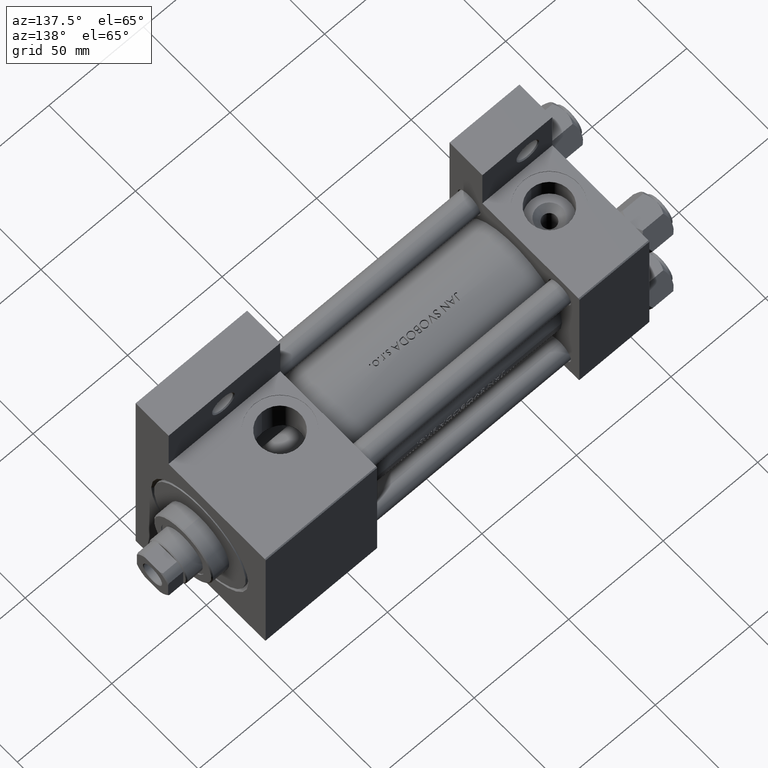
[diagram: clean part render]
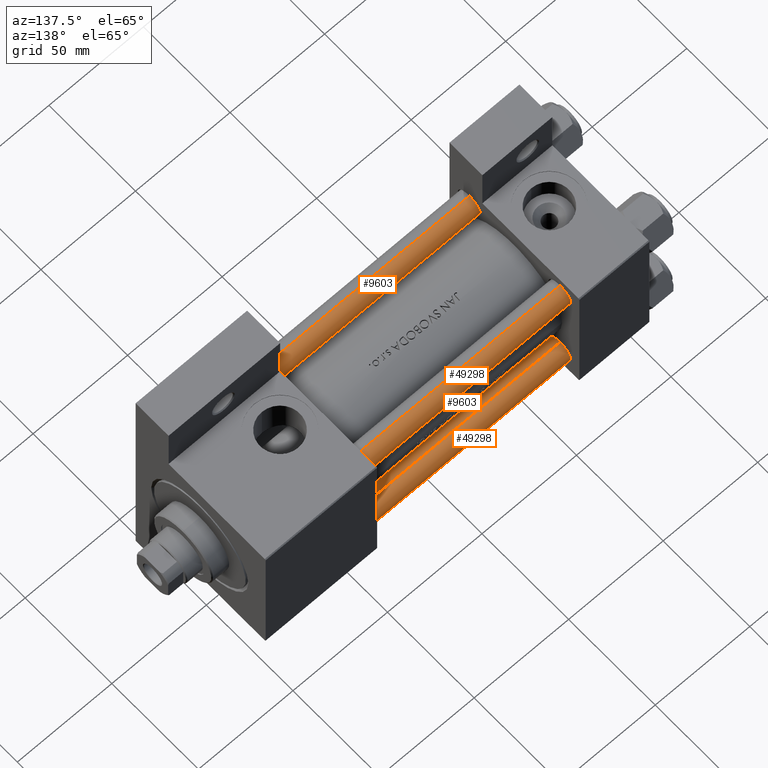
[diagram: same view with one multi-face feature highlighted, each face labeled with its STEP entity id]
A machine part, auxiliary view. The highlighted faces form ONE feature: a constant-radius fillet chain: 4 tangent blend faces with common blend radius 6 mm. The faces share edges in the B-rep.
Their STEP definitions:
[1] entity #49298 (Cylinder):
#94 = FACE_OUTER_BOUND ( 'NONE', #5029, .T. ) ;
#668 = LINE ( 'NONE', #11143, #45308 ) ;
#1693 = VERTEX_POINT ( 'NONE', #35043 ) ;
#2863 = CARTESIAN_POINT ( 'NONE',  ( 0.000000000000000000, 0.000000000000000000, 172.5000000000000000 ) ) ;
#3900 = CIRCLE ( 'NONE', #34106, 6.000000000000000888 ) ;
#5029 = EDGE_LOOP ( 'NONE', ( #9648, #10203, #13690, #46423 ) ) ;
#5472 = DIRECTION ( 'NONE',  ( 1.000000000000000000, 0.000000000000000000, 0.000000000000000000 ) ) ;
#7331 = DIRECTION ( 'NONE',  ( 0.000000000000000000, 0.000000000000000000, -1.000000000000000000 ) ) ;
#7340 = AXIS2_PLACEMENT_3D ( 'NONE', #26721, #41941, #15534 ) ;
#9627 = CIRCLE ( 'NONE', #37459, 6.000000000000000888 ) ;
#9648 = ORIENTED_EDGE ( 'NONE', *, *, #41752, .T. ) ;
#10203 = ORIENTED_EDGE ( 'NONE', *, *, #38712, .T. ) ;
#10233 = CARTESIAN_POINT ( 'NONE',  ( -6.000000000000000888, 0.000000000000000000, 172.5000000000000000 ) ) ;
#11143 = CARTESIAN_POINT ( 'NONE',  ( 6.000000000000000888, 7.347880794884120722E-16, 173.0000000000000000 ) ) ;
#12460 = EDGE_CURVE ( 'NONE', #14379, #37946, #44886, .T. ) ;
#13211 = DIRECTION ( 'NONE',  ( -0.000000000000000000, -0.000000000000000000, 1.000000000000000000 ) ) ;
#13690 = ORIENTED_EDGE ( 'NONE', *, *, #23918, .T. ) ;
#14379 = VERTEX_POINT ( 'NONE', #10233 ) ;
#14986 = CARTESIAN_POINT ( 'NONE',  ( -6.000000000000000888, 0.000000000000000000, 173.0000000000000000 ) ) ;
#15534 = DIRECTION ( 'NONE',  ( -1.000000000000000000, 0.000000000000000000, 0.000000000000000000 ) ) ;
#18613 = DIRECTION ( 'NONE',  ( -0.000000000000000000, -0.000000000000000000, -1.000000000000000000 ) ) ;
#21964 = DIRECTION ( 'NONE',  ( -0.000000000000000000, -0.000000000000000000, -1.000000000000000000 ) ) ;
#23918 = EDGE_CURVE ( 'NONE', #1693, #37946, #9627, .T. ) ;
#26721 = CARTESIAN_POINT ( 'NONE',  ( 0.000000000000000000, 0.000000000000000000, 173.0000000000000000 ) ) ;
#29269 = VECTOR ( 'NONE', #21964, 1000.000000000000000 ) ;
#29497 = DIRECTION ( 'NONE',  ( 1.000000000000000000, 0.000000000000000000, 0.000000000000000000 ) ) ;
#30461 = CYLINDRICAL_SURFACE ( 'NONE', #7340, 6.000000000000000888 ) ;
#31619 = CARTESIAN_POINT ( 'NONE',  ( 0.000000000000000000, 0.000000000000000000, 0.5000000000000281997 ) ) ;
#34106 = AXIS2_PLACEMENT_3D ( 'NONE', #2863, #7331, #29497 ) ;
#35043 = CARTESIAN_POINT ( 'NONE',  ( 6.000000000000000888, 7.347880794884120722E-16, 0.5000000000000281997 ) ) ;
#35174 = VERTEX_POINT ( 'NONE', #45690 ) ;
#37459 = AXIS2_PLACEMENT_3D ( 'NONE', #31619, #13211, #5472 ) ;
#37946 = VERTEX_POINT ( 'NONE', #43670 ) ;
#38712 = EDGE_CURVE ( 'NONE', #35174, #1693, #668, .T. ) ;
#41752 = EDGE_CURVE ( 'NONE', #14379, #35174, #3900, .T. ) ;
#41941 = DIRECTION ( 'NONE',  ( -0.000000000000000000, -0.000000000000000000, -1.000000000000000000 ) ) ;
#43670 = CARTESIAN_POINT ( 'NONE',  ( -6.000000000000000888, 0.000000000000000000, 0.5000000000000281997 ) ) ;
#44886 = LINE ( 'NONE', #14986, #29269 ) ;
#45308 = VECTOR ( 'NONE', #18613, 1000.000000000000000 ) ;
#45690 = CARTESIAN_POINT ( 'NONE',  ( 6.000000000000000888, 7.347880794884120722E-16, 172.5000000000000000 ) ) ;
#46423 = ORIENTED_EDGE ( 'NONE', *, *, #12460, .F. ) ;
#49298 = ADVANCED_FACE ( 'NONE', ( #94 ), #30461, .T. ) ;
[2] entity #9603 (Cylinder):
#668 = LINE ( 'NONE', #11143, #45308 ) ;
#1693 = VERTEX_POINT ( 'NONE', #35043 ) ;
#1847 = DIRECTION ( 'NONE',  ( -0.000000000000000000, -0.000000000000000000, -1.000000000000000000 ) ) ;
#5567 = CARTESIAN_POINT ( 'NONE',  ( 0.000000000000000000, 0.000000000000000000, 173.0000000000000000 ) ) ;
#8517 = CIRCLE ( 'NONE', #37966, 6.000000000000000888 ) ;
#9603 = ADVANCED_FACE ( 'NONE', ( #20772 ), #43186, .T. ) ;
#10233 = CARTESIAN_POINT ( 'NONE',  ( -6.000000000000000888, 0.000000000000000000, 172.5000000000000000 ) ) ;
#11143 = CARTESIAN_POINT ( 'NONE',  ( 6.000000000000000888, 7.347880794884120722E-16, 173.0000000000000000 ) ) ;
#12460 = EDGE_CURVE ( 'NONE', #14379, #37946, #44886, .T. ) ;
#14379 = VERTEX_POINT ( 'NONE', #10233 ) ;
#14986 = CARTESIAN_POINT ( 'NONE',  ( -6.000000000000000888, 0.000000000000000000, 173.0000000000000000 ) ) ;
#17321 = DIRECTION ( 'NONE',  ( 0.000000000000000000, 0.000000000000000000, -1.000000000000000000 ) ) ;
#17462 = CARTESIAN_POINT ( 'NONE',  ( 0.000000000000000000, 0.000000000000000000, 0.5000000000000281997 ) ) ;
#18380 = EDGE_CURVE ( 'NONE', #37946, #1693, #42062, .T. ) ;
#18613 = DIRECTION ( 'NONE',  ( -0.000000000000000000, -0.000000000000000000, -1.000000000000000000 ) ) ;
#20772 = FACE_OUTER_BOUND ( 'NONE', #33292, .T. ) ;
#20818 = CARTESIAN_POINT ( 'NONE',  ( 0.000000000000000000, 0.000000000000000000, 172.5000000000000000 ) ) ;
#21964 = DIRECTION ( 'NONE',  ( -0.000000000000000000, -0.000000000000000000, -1.000000000000000000 ) ) ;
#23514 = DIRECTION ( 'NONE',  ( -1.000000000000000000, 0.000000000000000000, 0.000000000000000000 ) ) ;
#24478 = ORIENTED_EDGE ( 'NONE', *, *, #38712, .F. ) ;
#28252 = DIRECTION ( 'NONE',  ( 1.000000000000000000, 0.000000000000000000, 0.000000000000000000 ) ) ;
#29269 = VECTOR ( 'NONE', #21964, 1000.000000000000000 ) ;
#31922 = ORIENTED_EDGE ( 'NONE', *, *, #18380, .T. ) ;
#33292 = EDGE_LOOP ( 'NONE', ( #24478, #35480, #46690, #31922 ) ) ;
#34926 = EDGE_CURVE ( 'NONE', #35174, #14379, #8517, .T. ) ;
#35043 = CARTESIAN_POINT ( 'NONE',  ( 6.000000000000000888, 7.347880794884120722E-16, 0.5000000000000281997 ) ) ;
#35174 = VERTEX_POINT ( 'NONE', #45690 ) ;
#35480 = ORIENTED_EDGE ( 'NONE', *, *, #34926, .T. ) ;
#35699 = AXIS2_PLACEMENT_3D ( 'NONE', #17462, #39390, #36380 ) ;
#36322 = AXIS2_PLACEMENT_3D ( 'NONE', #5567, #1847, #23514 ) ;
#36380 = DIRECTION ( 'NONE',  ( 1.000000000000000000, 0.000000000000000000, 0.000000000000000000 ) ) ;
#37946 = VERTEX_POINT ( 'NONE', #43670 ) ;
#37966 = AXIS2_PLACEMENT_3D ( 'NONE', #20818, #17321, #28252 ) ;
#38712 = EDGE_CURVE ( 'NONE', #35174, #1693, #668, .T. ) ;
#39390 = DIRECTION ( 'NONE',  ( -0.000000000000000000, -0.000000000000000000, 1.000000000000000000 ) ) ;
#42062 = CIRCLE ( 'NONE', #35699, 6.000000000000000888 ) ;
#43186 = CYLINDRICAL_SURFACE ( 'NONE', #36322, 6.000000000000000888 ) ;
#43670 = CARTESIAN_POINT ( 'NONE',  ( -6.000000000000000888, 0.000000000000000000, 0.5000000000000281997 ) ) ;
#44886 = LINE ( 'NONE', #14986, #29269 ) ;
#45308 = VECTOR ( 'NONE', #18613, 1000.000000000000000 ) ;
#45690 = CARTESIAN_POINT ( 'NONE',  ( 6.000000000000000888, 7.347880794884120722E-16, 172.5000000000000000 ) ) ;
#46690 = ORIENTED_EDGE ( 'NONE', *, *, #12460, .T. ) ;
[3] entity #49298 (Cylinder):
#94 = FACE_OUTER_BOUND ( 'NONE', #5029, .T. ) ;
#668 = LINE ( 'NONE', #11143, #45308 ) ;
#1693 = VERTEX_POINT ( 'NONE', #35043 ) ;
#2863 = CARTESIAN_POINT ( 'NONE',  ( 0.000000000000000000, 0.000000000000000000, 172.5000000000000000 ) ) ;
#3900 = CIRCLE ( 'NONE', #34106, 6.000000000000000888 ) ;
#5029 = EDGE_LOOP ( 'NONE', ( #9648, #10203, #13690, #46423 ) ) ;
#5472 = DIRECTION ( 'NONE',  ( 1.000000000000000000, 0.000000000000000000, 0.000000000000000000 ) ) ;
#7331 = DIRECTION ( 'NONE',  ( 0.000000000000000000, 0.000000000000000000, -1.000000000000000000 ) ) ;
#7340 = AXIS2_PLACEMENT_3D ( 'NONE', #26721, #41941, #15534 ) ;
#9627 = CIRCLE ( 'NONE', #37459, 6.000000000000000888 ) ;
#9648 = ORIENTED_EDGE ( 'NONE', *, *, #41752, .T. ) ;
#10203 = ORIENTED_EDGE ( 'NONE', *, *, #38712, .T. ) ;
#10233 = CARTESIAN_POINT ( 'NONE',  ( -6.000000000000000888, 0.000000000000000000, 172.5000000000000000 ) ) ;
#11143 = CARTESIAN_POINT ( 'NONE',  ( 6.000000000000000888, 7.347880794884120722E-16, 173.0000000000000000 ) ) ;
#12460 = EDGE_CURVE ( 'NONE', #14379, #37946, #44886, .T. ) ;
#13211 = DIRECTION ( 'NONE',  ( -0.000000000000000000, -0.000000000000000000, 1.000000000000000000 ) ) ;
#13690 = ORIENTED_EDGE ( 'NONE', *, *, #23918, .T. ) ;
#14379 = VERTEX_POINT ( 'NONE', #10233 ) ;
#14986 = CARTESIAN_POINT ( 'NONE',  ( -6.000000000000000888, 0.000000000000000000, 173.0000000000000000 ) ) ;
#15534 = DIRECTION ( 'NONE',  ( -1.000000000000000000, 0.000000000000000000, 0.000000000000000000 ) ) ;
#18613 = DIRECTION ( 'NONE',  ( -0.000000000000000000, -0.000000000000000000, -1.000000000000000000 ) ) ;
#21964 = DIRECTION ( 'NONE',  ( -0.000000000000000000, -0.000000000000000000, -1.000000000000000000 ) ) ;
#23918 = EDGE_CURVE ( 'NONE', #1693, #37946, #9627, .T. ) ;
#26721 = CARTESIAN_POINT ( 'NONE',  ( 0.000000000000000000, 0.000000000000000000, 173.0000000000000000 ) ) ;
#29269 = VECTOR ( 'NONE', #21964, 1000.000000000000000 ) ;
#29497 = DIRECTION ( 'NONE',  ( 1.000000000000000000, 0.000000000000000000, 0.000000000000000000 ) ) ;
#30461 = CYLINDRICAL_SURFACE ( 'NONE', #7340, 6.000000000000000888 ) ;
#31619 = CARTESIAN_POINT ( 'NONE',  ( 0.000000000000000000, 0.000000000000000000, 0.5000000000000281997 ) ) ;
#34106 = AXIS2_PLACEMENT_3D ( 'NONE', #2863, #7331, #29497 ) ;
#35043 = CARTESIAN_POINT ( 'NONE',  ( 6.000000000000000888, 7.347880794884120722E-16, 0.5000000000000281997 ) ) ;
#35174 = VERTEX_POINT ( 'NONE', #45690 ) ;
#37459 = AXIS2_PLACEMENT_3D ( 'NONE', #31619, #13211, #5472 ) ;
#37946 = VERTEX_POINT ( 'NONE', #43670 ) ;
#38712 = EDGE_CURVE ( 'NONE', #35174, #1693, #668, .T. ) ;
#41752 = EDGE_CURVE ( 'NONE', #14379, #35174, #3900, .T. ) ;
#41941 = DIRECTION ( 'NONE',  ( -0.000000000000000000, -0.000000000000000000, -1.000000000000000000 ) ) ;
#43670 = CARTESIAN_POINT ( 'NONE',  ( -6.000000000000000888, 0.000000000000000000, 0.5000000000000281997 ) ) ;
#44886 = LINE ( 'NONE', #14986, #29269 ) ;
#45308 = VECTOR ( 'NONE', #18613, 1000.000000000000000 ) ;
#45690 = CARTESIAN_POINT ( 'NONE',  ( 6.000000000000000888, 7.347880794884120722E-16, 172.5000000000000000 ) ) ;
#46423 = ORIENTED_EDGE ( 'NONE', *, *, #12460, .F. ) ;
#49298 = ADVANCED_FACE ( 'NONE', ( #94 ), #30461, .T. ) ;
[4] entity #9603 (Cylinder):
#668 = LINE ( 'NONE', #11143, #45308 ) ;
#1693 = VERTEX_POINT ( 'NONE', #35043 ) ;
#1847 = DIRECTION ( 'NONE',  ( -0.000000000000000000, -0.000000000000000000, -1.000000000000000000 ) ) ;
#5567 = CARTESIAN_POINT ( 'NONE',  ( 0.000000000000000000, 0.000000000000000000, 173.0000000000000000 ) ) ;
#8517 = CIRCLE ( 'NONE', #37966, 6.000000000000000888 ) ;
#9603 = ADVANCED_FACE ( 'NONE', ( #20772 ), #43186, .T. ) ;
#10233 = CARTESIAN_POINT ( 'NONE',  ( -6.000000000000000888, 0.000000000000000000, 172.5000000000000000 ) ) ;
#11143 = CARTESIAN_POINT ( 'NONE',  ( 6.000000000000000888, 7.347880794884120722E-16, 173.0000000000000000 ) ) ;
#12460 = EDGE_CURVE ( 'NONE', #14379, #37946, #44886, .T. ) ;
#14379 = VERTEX_POINT ( 'NONE', #10233 ) ;
#14986 = CARTESIAN_POINT ( 'NONE',  ( -6.000000000000000888, 0.000000000000000000, 173.0000000000000000 ) ) ;
#17321 = DIRECTION ( 'NONE',  ( 0.000000000000000000, 0.000000000000000000, -1.000000000000000000 ) ) ;
#17462 = CARTESIAN_POINT ( 'NONE',  ( 0.000000000000000000, 0.000000000000000000, 0.5000000000000281997 ) ) ;
#18380 = EDGE_CURVE ( 'NONE', #37946, #1693, #42062, .T. ) ;
#18613 = DIRECTION ( 'NONE',  ( -0.000000000000000000, -0.000000000000000000, -1.000000000000000000 ) ) ;
#20772 = FACE_OUTER_BOUND ( 'NONE', #33292, .T. ) ;
#20818 = CARTESIAN_POINT ( 'NONE',  ( 0.000000000000000000, 0.000000000000000000, 172.5000000000000000 ) ) ;
#21964 = DIRECTION ( 'NONE',  ( -0.000000000000000000, -0.000000000000000000, -1.000000000000000000 ) ) ;
#23514 = DIRECTION ( 'NONE',  ( -1.000000000000000000, 0.000000000000000000, 0.000000000000000000 ) ) ;
#24478 = ORIENTED_EDGE ( 'NONE', *, *, #38712, .F. ) ;
#28252 = DIRECTION ( 'NONE',  ( 1.000000000000000000, 0.000000000000000000, 0.000000000000000000 ) ) ;
#29269 = VECTOR ( 'NONE', #21964, 1000.000000000000000 ) ;
#31922 = ORIENTED_EDGE ( 'NONE', *, *, #18380, .T. ) ;
#33292 = EDGE_LOOP ( 'NONE', ( #24478, #35480, #46690, #31922 ) ) ;
#34926 = EDGE_CURVE ( 'NONE', #35174, #14379, #8517, .T. ) ;
#35043 = CARTESIAN_POINT ( 'NONE',  ( 6.000000000000000888, 7.347880794884120722E-16, 0.5000000000000281997 ) ) ;
#35174 = VERTEX_POINT ( 'NONE', #45690 ) ;
#35480 = ORIENTED_EDGE ( 'NONE', *, *, #34926, .T. ) ;
#35699 = AXIS2_PLACEMENT_3D ( 'NONE', #17462, #39390, #36380 ) ;
#36322 = AXIS2_PLACEMENT_3D ( 'NONE', #5567, #1847, #23514 ) ;
#36380 = DIRECTION ( 'NONE',  ( 1.000000000000000000, 0.000000000000000000, 0.000000000000000000 ) ) ;
#37946 = VERTEX_POINT ( 'NONE', #43670 ) ;
#37966 = AXIS2_PLACEMENT_3D ( 'NONE', #20818, #17321, #28252 ) ;
#38712 = EDGE_CURVE ( 'NONE', #35174, #1693, #668, .T. ) ;
#39390 = DIRECTION ( 'NONE',  ( -0.000000000000000000, -0.000000000000000000, 1.000000000000000000 ) ) ;
#42062 = CIRCLE ( 'NONE', #35699, 6.000000000000000888 ) ;
#43186 = CYLINDRICAL_SURFACE ( 'NONE', #36322, 6.000000000000000888 ) ;
#43670 = CARTESIAN_POINT ( 'NONE',  ( -6.000000000000000888, 0.000000000000000000, 0.5000000000000281997 ) ) ;
#44886 = LINE ( 'NONE', #14986, #29269 ) ;
#45308 = VECTOR ( 'NONE', #18613, 1000.000000000000000 ) ;
#45690 = CARTESIAN_POINT ( 'NONE',  ( 6.000000000000000888, 7.347880794884120722E-16, 172.5000000000000000 ) ) ;
#46690 = ORIENTED_EDGE ( 'NONE', *, *, #12460, .T. ) ;